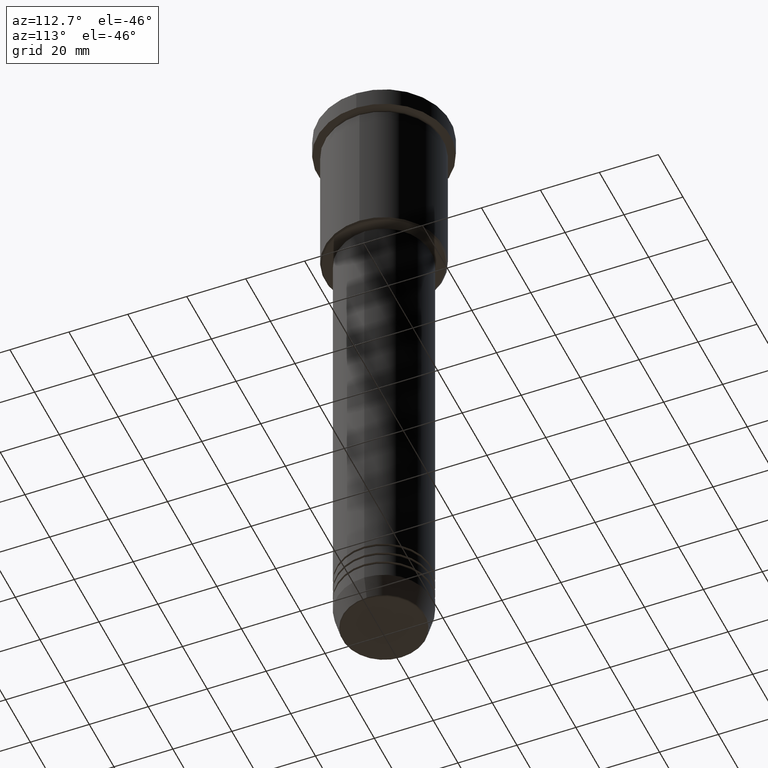
[diagram: clean part render]
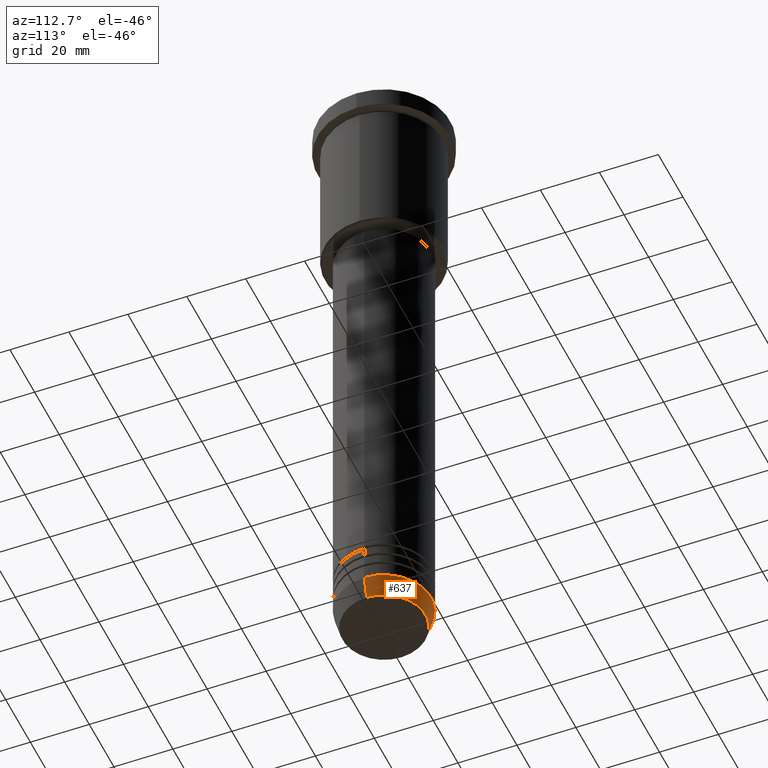
[diagram: same view with one face highlighted and labeled with its STEP entity id]
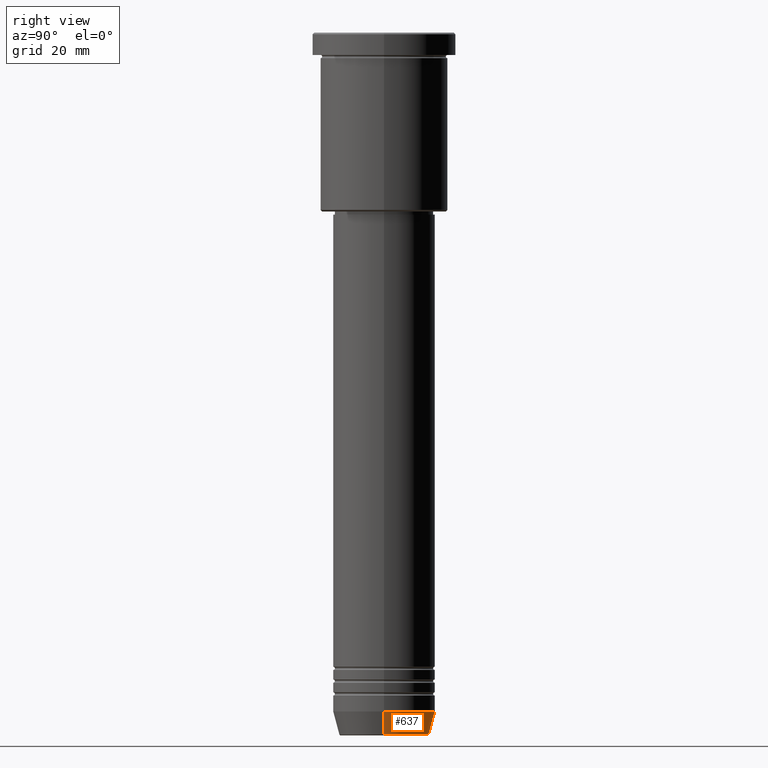
[diagram: same view with one face highlighted and labeled with its STEP entity id]
A machine part, auxiliary view. The second image highlights one B-rep face of the part: STEP entity #637.
A second angle (right view) of the same face is appended — the face is thin or edge-on in the first view.
In plain terms, the highlighted conical surface has half-angle 15 deg.
Its self-contained STEP definition (entity closure, byte-faithful):
#8 = VERTEX_POINT ( 'NONE', #1146 ) ;
#71 = DIRECTION ( 'NONE',  ( -0.000000000000000000, -0.000000000000000000, 1.000000000000000000 ) ) ;
#90 = CIRCLE ( 'NONE', #376, 14.08968047592163941 ) ;
#130 = ORIENTED_EDGE ( 'NONE', *, *, #470, .F. ) ;
#143 = VECTOR ( 'NONE', #1169, 1000.000000000000000 ) ;
#169 = ORIENTED_EDGE ( 'NONE', *, *, #578, .T. ) ;
#185 = CARTESIAN_POINT ( 'NONE',  ( 0.000000000000000000, 0.000000000000000000, -219.6294095225512137 ) ) ;
#266 = CARTESIAN_POINT ( 'NONE',  ( 16.00000000000000000, 0.000000000000000000, -212.5000000000000000 ) ) ;
#277 = AXIS2_PLACEMENT_3D ( 'NONE', #419, #71, #1060 ) ;
#283 = FACE_OUTER_BOUND ( 'NONE', #671, .T. ) ;
#296 = ORIENTED_EDGE ( 'NONE', *, *, #580, .F. ) ;
#376 = AXIS2_PLACEMENT_3D ( 'NONE', #185, #837, #627 ) ;
#382 = CARTESIAN_POINT ( 'NONE',  ( -16.00000000000000000, 1.959434878635765131E-15, -212.5000000000000000 ) ) ;
#419 = CARTESIAN_POINT ( 'NONE',  ( 0.000000000000000000, 0.000000000000000000, -212.5000000000000000 ) ) ;
#470 = EDGE_CURVE ( 'NONE', #521, #780, #805, .T. ) ;
#515 = VECTOR ( 'NONE', #1183, 1000.000000000000000 ) ;
#521 = VERTEX_POINT ( 'NONE', #1149 ) ;
#559 = LINE ( 'NONE', #997, #515 ) ;
#578 = EDGE_CURVE ( 'NONE', #701, #780, #559, .T. ) ;
#580 = EDGE_CURVE ( 'NONE', #8, #521, #922, .T. ) ;
#591 = ORIENTED_EDGE ( 'NONE', *, *, #683, .T. ) ;
#627 = DIRECTION ( 'NONE',  ( 1.000000000000000000, 0.000000000000000000, 0.000000000000000000 ) ) ;
#637 = ADVANCED_FACE ( 'NONE', ( #283 ), #1028, .T. ) ;
#661 = CARTESIAN_POINT ( 'NONE',  ( -14.08968047592163941, 1.842461544110202058E-15, -219.6294095225512137 ) ) ;
#671 = EDGE_LOOP ( 'NONE', ( #591, #169, #130, #296 ) ) ;
#683 = EDGE_CURVE ( 'NONE', #8, #701, #90, .T. ) ;
#701 = VERTEX_POINT ( 'NONE', #661 ) ;
#780 = VERTEX_POINT ( 'NONE', #382 ) ;
#784 = AXIS2_PLACEMENT_3D ( 'NONE', #1094, #1174, #1098 ) ;
#805 = CIRCLE ( 'NONE', #277, 16.00000000000000000 ) ;
#837 = DIRECTION ( 'NONE',  ( -0.000000000000000000, -0.000000000000000000, 1.000000000000000000 ) ) ;
#922 = LINE ( 'NONE', #266, #143 ) ;
#997 = CARTESIAN_POINT ( 'NONE',  ( -16.00000000000000000, 1.959434878635765131E-15, -212.5000000000000000 ) ) ;
#1028 = CONICAL_SURFACE ( 'NONE', #784, 16.00000000000000000, 0.2617993877991500740 ) ;
#1060 = DIRECTION ( 'NONE',  ( 1.000000000000000000, 0.000000000000000000, 0.000000000000000000 ) ) ;
#1094 = CARTESIAN_POINT ( 'NONE',  ( 0.000000000000000000, 0.000000000000000000, -212.5000000000000000 ) ) ;
#1098 = DIRECTION ( 'NONE',  ( 1.000000000000000000, 0.000000000000000000, 0.000000000000000000 ) ) ;
#1146 = CARTESIAN_POINT ( 'NONE',  ( 14.08968047592163941, 0.000000000000000000, -219.6294095225512137 ) ) ;
#1149 = CARTESIAN_POINT ( 'NONE',  ( 16.00000000000000000, 0.000000000000000000, -212.5000000000000000 ) ) ;
#1169 = DIRECTION ( 'NONE',  ( 0.2588190451025213501, 0.000000000000000000, 0.9659258262890680902 ) ) ;
#1174 = DIRECTION ( 'NONE',  ( -0.000000000000000000, -0.000000000000000000, 1.000000000000000000 ) ) ;
#1183 = DIRECTION ( 'NONE',  ( -0.2588190451025213501, 3.169619151431772337E-17, 0.9659258262890680902 ) ) ;